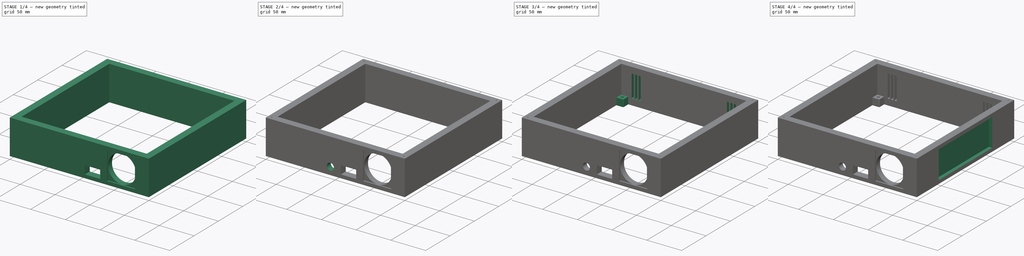
[diagram: build sequence overview — one tinted view per stage of 4, left to right]
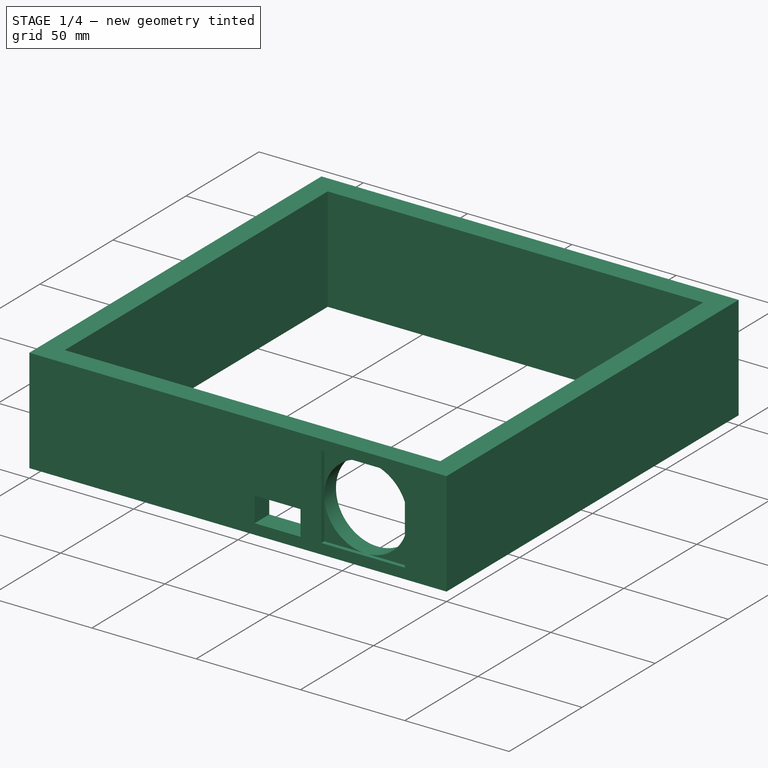
[diagram: stage 1 of 4 — iso view after this stage's code; geometry added in this stage tinted green]
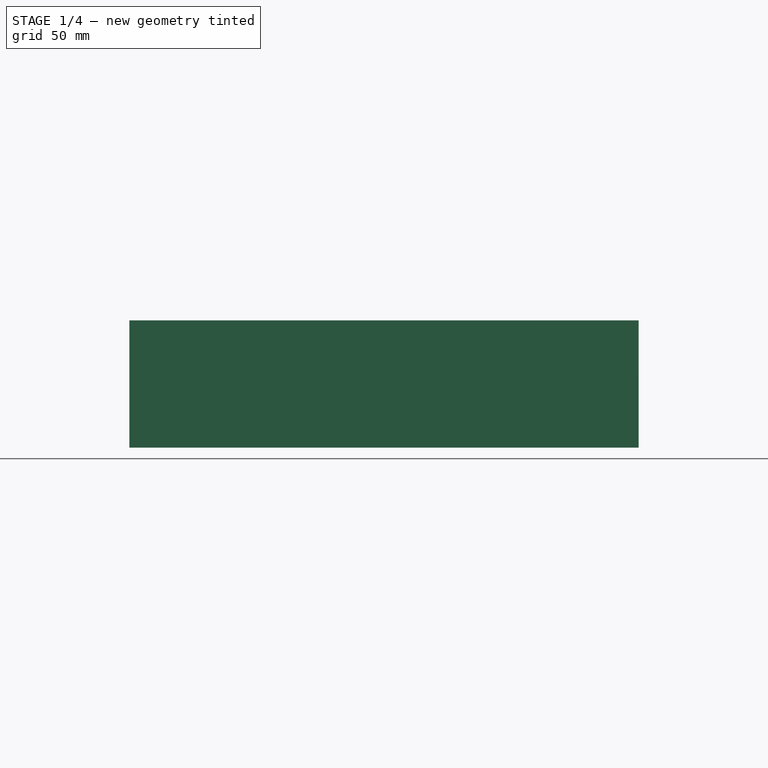
[diagram: stage 1 of 4 — front view after this stage's code; geometry added in this stage tinted green]
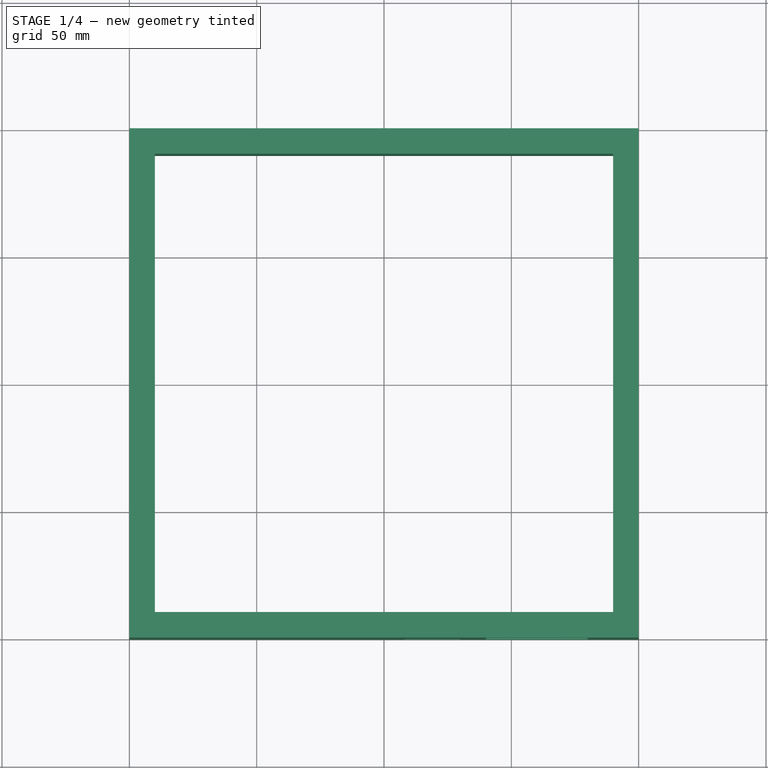
[diagram: stage 1 of 4 — top view after this stage's code; geometry added in this stage tinted green]
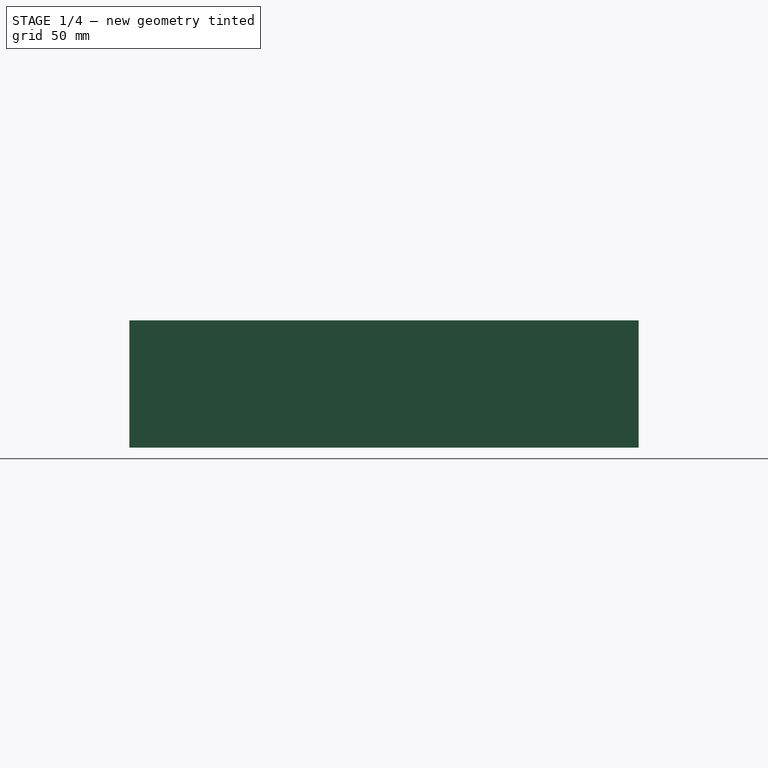
[diagram: stage 1 of 4 — right view after this stage's code; geometry added in this stage tinted green]
FCSTD DOCUMENT  (FreeCAD 1.0R39109 (Git))
Label: Gehause
License: All rights reserved
LicenseURL: https://en.wikipedia.org/wiki/All_rights_reserved
objects: Sketcher::SketchObject×13, PartDesign::Pocket×11, PartDesign::Pad×2, PartDesign::Fillet×1, PartDesign::Body×1
note: 69 computed .brp shape members not serialized (recipe doc carries the construction recipe); baked Part::Feature solids carry a one-line shape summary decoded from their .brp

FEATURE [Sketcher::SketchObject] Sketch
  ArcFitTolerance = 1e-06
  AttachmentSupport = -> [XY_Plane]
  FullyConstrained = true
  MakeInternals = false
  MapMode = 5
  sketch-geometry (8):
    g0: LineSegment StartX=0 StartY=0 StartZ=0 EndX=200 EndY=0 EndZ=0
    g1: LineSegment StartX=200 StartY=0 StartZ=0 EndX=200 EndY=200 EndZ=0
    g2: LineSegment StartX=200 StartY=200 StartZ=0 EndX=0 EndY=200 EndZ=0
    g3: LineSegment StartX=0 StartY=200 StartZ=0 EndX=0 EndY=0 EndZ=0
    g4: LineSegment StartX=10 StartY=10 StartZ=0 EndX=190 EndY=10 EndZ=0
    g5: LineSegment StartX=190 StartY=10 StartZ=0 EndX=190 EndY=190 EndZ=0
    g6: LineSegment StartX=190 StartY=190 StartZ=0 EndX=10 EndY=190 EndZ=0
    g7: LineSegment StartX=10 StartY=190 StartZ=0 EndX=10 EndY=10 EndZ=0
  constraints (23):
    c: Coincident(g0,g1)
    c: Coincident(g1,g2)
    c: Coincident(g2,g3)
    c: Coincident(g3,g0)
    c: Horizontal(g0)
    c: Horizontal(g2)
    c: Vertical(g1)
    c: Vertical(g3)
    c: Distance(g1,g3) = 200
    c: Distance(g0,g2) = 200
    c: Coincident(g0,g-1)
    c: Coincident(g4,g5)
    c: Coincident(g5,g6)
    c: Coincident(g6,g7)
    c: Coincident(g7,g4)
    c: Horizontal(g4)
    c: Horizontal(g6)
    c: Vertical(g5)
    c: Vertical(g7)
    c: Distance(g0,g4) = 10
    c: Distance(g1,g5) = 10
    c: Distance(g3,g7) = 10
    c: Distance(g2,g6) = 10
FEATURE [PartDesign::Pad] Pad
  Direction = (0,0,1)
  Length = 50
  Length2 = 10
  Profile = -> Sketch
  ReferenceAxis = -> Sketch [N_Axis]
  Refine = true
  Suppressed = false
  Type = 0
FEATURE [Sketcher::SketchObject] Sketch001
  ArcFitTolerance = 1e-06
  AttachmentSupport = -> [Pad]
  ExternalGeometry = -> [Pad]
  FullyConstrained = true
  MakeInternals = false
  MapMode = 5
  Placement = pos=(0,0,0) rot=(1,0,0;1.5708rad)
  sketch-geometry (7):
    g0: LineSegment StartX=140 StartY=5 StartZ=0 EndX=180 EndY=5 EndZ=0
    g1: LineSegment StartX=180 StartY=5 StartZ=0 EndX=180 EndY=45 EndZ=0
    g2: LineSegment StartX=180 StartY=45 StartZ=0 EndX=140 EndY=45 EndZ=0
    g3: LineSegment StartX=140 StartY=45 StartZ=0 EndX=140 EndY=5 EndZ=0
    g4: LineSegment [constr] StartX=200 StartY=50 StartZ=0 EndX=120 EndY=0 EndZ=0
    g5: GeomPoint [constr] X=160 Y=25 Z=0
    g6: LineSegment [constr] StartX=140 StartY=45 StartZ=0 EndX=180 EndY=5 EndZ=0
  constraints (17):
    c: Coincident(g0,g1)
    c: Coincident(g1,g2)
    c: Coincident(g2,g3)
    c: Coincident(g3,g0)
    c: Horizontal(g0)
    c: Horizontal(g2)
    c: Vertical(g1)
    c: Vertical(g3)
    c: Distance(g1,g3) = 40
    c: Distance(g0,g2) = 40
    c: Coincident(g4,g-3)
    c: PointOnObject(g4,g-1)
    c: Symmetric(g4,g4,g5)
    c: Coincident(g6,g0)
    c: Coincident(g6,g2)
    c: Symmetric(g6,g6,g5)
    c: Distance(g-3,g1) = 20
FEATURE [PartDesign::Pocket] Pocket  label="Lüftungsgitter-Loch"
  BaseFeature = -> Pad
  Direction = (0,1,-2e-16)
  Length = 2
  Length2 = 5
  Profile = -> Sketch001
  ReferenceAxis = -> Sketch001 [N_Axis]
  Refine = true
  Suppressed = false
  Type = 0
FEATURE [Sketcher::SketchObject] Sketch002
  ArcFitTolerance = 1e-06
  AttachmentSupport = -> [Pocket]
  ExternalGeometry = -> [Pocket]
  FullyConstrained = true
  MakeInternals = false
  MapMode = 5
  Placement = pos=(0,2,0) rot=(1,0,0;1.5708rad)
  sketch-geometry (2):
    g0: LineSegment [constr] StartX=140 StartY=5 StartZ=0 EndX=180 EndY=45 EndZ=0
    g1: Circle CenterX=160 CenterY=25 CenterZ=0 NormalX=0 NormalY=0 NormalZ=1 AngleXU=0 Radius=20
  constraints (4):
    c: Coincident(g0,g-4)
    c: Coincident(g0,g-3)
    c: Diameter(g1) = 40
    c: Symmetric(g0,g0,g1)
FEATURE [PartDesign::Pocket] Pocket001  label="Loch für Lüfter"
  BaseFeature = -> Pocket
  Direction = (0,1,-2e-16)
  Length = 8
  Length2 = 5
  Profile = -> Sketch002
  ReferenceAxis = -> Sketch002 [N_Axis]
  Refine = true
  Suppressed = false
  Type = 0
FEATURE [Sketcher::SketchObject] Sketch003
  ArcFitTolerance = 1e-06
  AttachmentSupport = -> [Pocket001]
  ExternalGeometry = -> [Pocket001]
  FullyConstrained = true
  MakeInternals = false
  MapMode = 5
  Placement = pos=(0,0,0) rot=(1,0,0;1.5708rad)
  sketch-geometry (4):
    g0: LineSegment StartX=108 StartY=5 StartZ=0 EndX=130 EndY=5 EndZ=0
    g1: LineSegment StartX=130 StartY=5 StartZ=0 EndX=130 EndY=17 EndZ=0
    g2: LineSegment StartX=130 StartY=17 StartZ=0 EndX=108 EndY=17 EndZ=0
    g3: LineSegment StartX=108 StartY=17 StartZ=0 EndX=108 EndY=5 EndZ=0
  constraints (12):
    c: Coincident(g0,g1)
    c: Coincident(g1,g2)
    c: Coincident(g2,g3)
    c: Coincident(g3,g0)
    c: Horizontal(g0)
    c: Horizontal(g2)
    c: Vertical(g1)
    c: Vertical(g3)
    c: Distance(g1,g3) = 22
    c: Distance(g0,g2) = 12
    c: PointOnObject(g0,g-3)
    c: Distance(g-4,g1) = 10
FEATURE [PartDesign::Pocket] Pocket002  label="Loch für HDMI"
  BaseFeature = -> Pocket001
  Direction = (0,1,-2e-16)
  Length = 10
  Length2 = 5
  Profile = -> Sketch003
  ReferenceAxis = -> Sketch003 [N_Axis]
  Refine = true
  Suppressed = false
  Type = 0
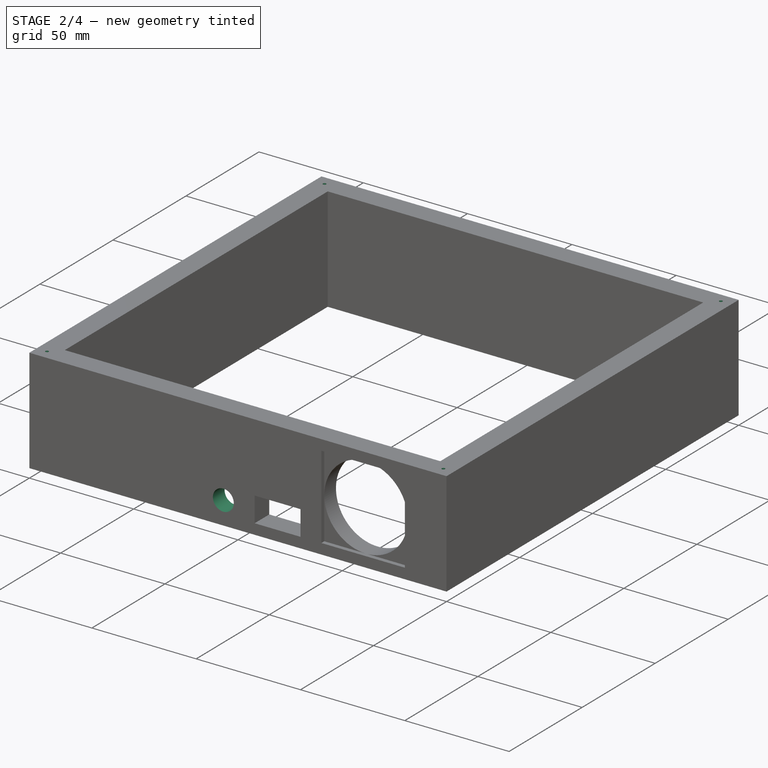
[diagram: stage 2 of 4 — iso view after this stage's code; geometry added in this stage tinted green]
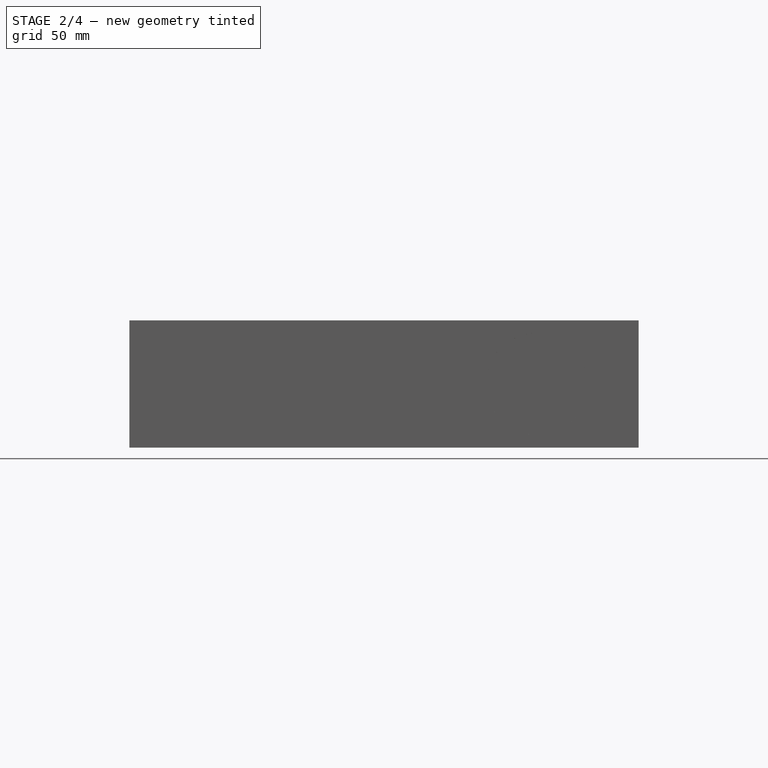
[diagram: stage 2 of 4 — front view after this stage's code; geometry added in this stage tinted green]
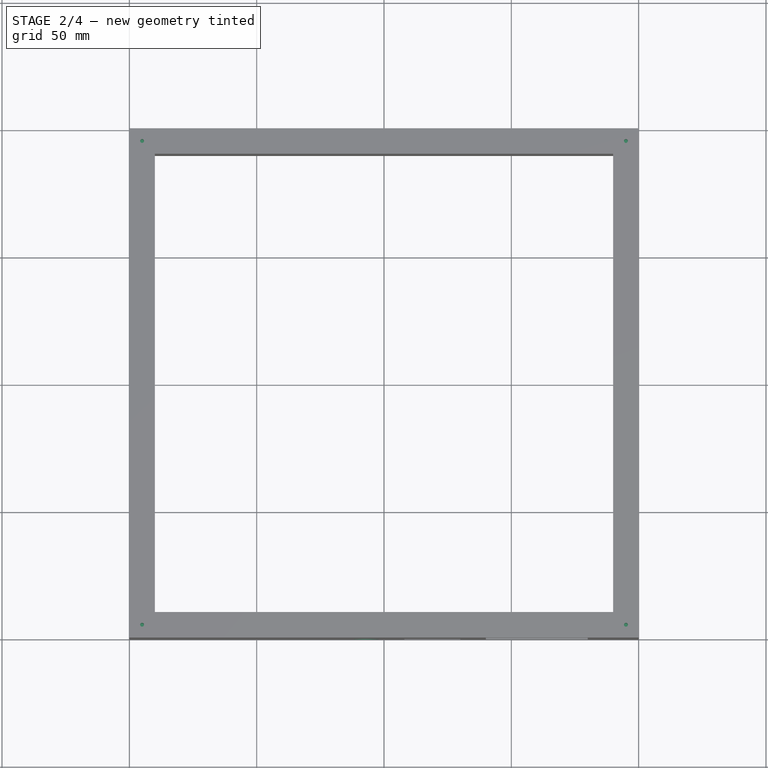
[diagram: stage 2 of 4 — top view after this stage's code; geometry added in this stage tinted green]
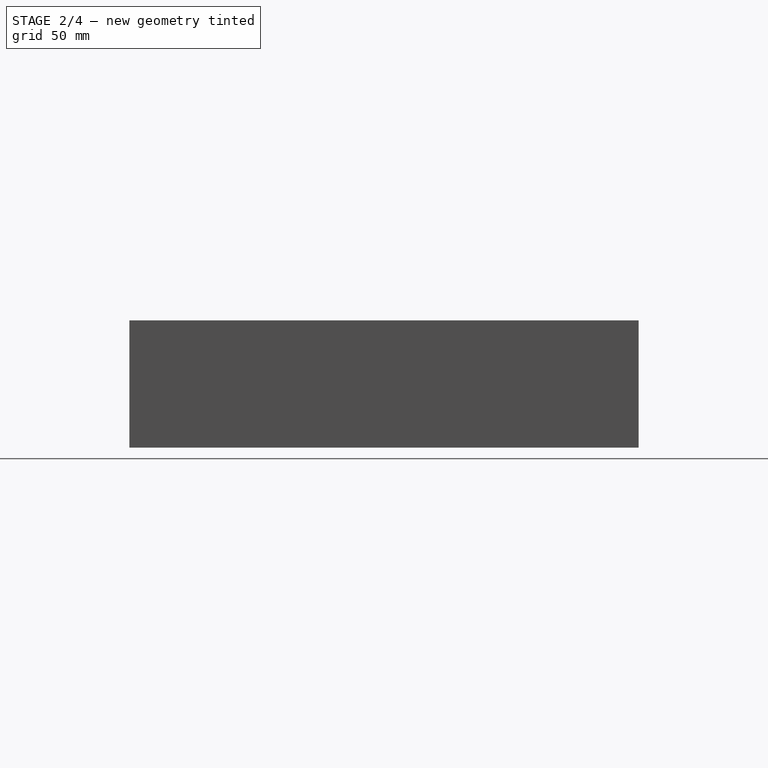
[diagram: stage 2 of 4 — right view after this stage's code; geometry added in this stage tinted green]
FEATURE [Sketcher::SketchObject] Sketch004
  ArcFitTolerance = 1e-06
  AttachmentSupport = -> [Pocket002]
  ExternalGeometry = -> [Pocket002]
  FullyConstrained = true
  MakeInternals = false
  MapMode = 5
  Placement = pos=(0,0,0) rot=(1,0,0;1.5708rad)
  sketch-geometry (3):
    g0: Circle CenterX=93 CenterY=11 CenterZ=0 NormalX=0 NormalY=0 NormalZ=1 AngleXU=0 Radius=5
    g1: LineSegment [constr] StartX=93 StartY=11 StartZ=0 EndX=108 EndY=17 EndZ=0
    g2: LineSegment [constr] StartX=93 StartY=11 StartZ=0 EndX=108 EndY=5 EndZ=0
  constraints (7):
    c: Diameter(g0) = 10
    c: Coincident(g1,g0)
    c: Coincident(g1,g-3)
    c: Coincident(g2,g1)
    c: Coincident(g2,g-3)
    c: Equal(g2,g1)
    c: DistanceX(g0,g2) = 15
FEATURE [PartDesign::Pocket] Pocket003  label="Loch für Strom"
  BaseFeature = -> Pocket002
  Direction = (0,1,-2e-16)
  Length = 10
  Length2 = 5
  Profile = -> Sketch004
  ReferenceAxis = -> Sketch004 [N_Axis]
  Refine = true
  Suppressed = false
  Type = 0
FEATURE [Sketcher::SketchObject] Sketch005
  ArcFitTolerance = 1e-06
  AttachmentSupport = -> [Pocket003]
  ExternalGeometry = -> [Pocket003]
  FullyConstrained = true
  MakeInternals = false
  MapMode = 5
  Placement = pos=(0,10,0) rot=(0,0.707107,0.707107;3.14159rad)
  sketch-geometry (5):
    g0: LineSegment StartX=-100.5 StartY=3.5 StartZ=0 EndX=-85.5 EndY=3.5 EndZ=0
    g1: LineSegment StartX=-85.5 StartY=3.5 StartZ=0 EndX=-85.5 EndY=18.5 EndZ=0
    g2: LineSegment StartX=-85.5 StartY=18.5 StartZ=0 EndX=-100.5 EndY=18.5 EndZ=0
    g3: LineSegment StartX=-100.5 StartY=18.5 StartZ=0 EndX=-100.5 EndY=3.5 EndZ=0
    g4: LineSegment [constr] StartX=-100.5 StartY=18.5 StartZ=0 EndX=-85.5 EndY=3.5 EndZ=0
  constraints (13):
    c: Coincident(g0,g1)
    c: Coincident(g1,g2)
    c: Coincident(g2,g3)
    c: Coincident(g3,g0)
    c: Horizontal(g0)
    c: Horizontal(g2)
    c: Vertical(g1)
    c: Vertical(g3)
    c: Distance(g1,g3) = 15
    c: Distance(g0,g2) = 15
    c: Coincident(g4,g2)
    c: Symmetric(g4,g4,g-3)
    c: Coincident(g4,g0)
FEATURE [PartDesign::Pocket] Pocket004  label="Aussparung für Strom"
  BaseFeature = -> Pocket003
  Direction = (0,-1,2e-16)
  Length = 2
  Length2 = 5
  Profile = -> Sketch005
  ReferenceAxis = -> Sketch005 [N_Axis]
  Refine = true
  Suppressed = false
  Type = 0
FEATURE [Sketcher::SketchObject] Sketch006
  ArcFitTolerance = 1e-06
  AttachmentSupport = -> [Pocket004]
  ExternalGeometry = -> [Pocket004]
  FullyConstrained = true
  MakeInternals = false
  MapMode = 5
  Placement = pos=(0,0,50) rot=(0,0,1;0rad)
  sketch-geometry (8):
    g0: Circle CenterX=5 CenterY=5 CenterZ=0 NormalX=0 NormalY=0 NormalZ=1 AngleXU=0 Radius=0.75
    g1: LineSegment [constr] StartX=0 StartY=0 StartZ=0 EndX=10 EndY=10 EndZ=0
    g2: LineSegment [constr] StartX=190 StartY=10 StartZ=0 EndX=200 EndY=0 EndZ=0
    g3: Circle CenterX=195 CenterY=5 CenterZ=0 NormalX=0 NormalY=0 NormalZ=1 AngleXU=0 Radius=0.75
    g4: LineSegment [constr] StartX=190 StartY=190 StartZ=0 EndX=200 EndY=200 EndZ=0
    g5: Circle CenterX=195 CenterY=195 CenterZ=0 NormalX=0 NormalY=0 NormalZ=1 AngleXU=0 Radius=0.75
    g6: LineSegment [constr] StartX=0 StartY=200 StartZ=0 EndX=10 EndY=190 EndZ=0
    g7: Circle CenterX=5 CenterY=195 CenterZ=0 NormalX=0 NormalY=0 NormalZ=1 AngleXU=0 Radius=0.75
  constraints (16):
    c: Diameter(g0) = 1.5
    c: Coincident(g1,g-1)
    c: Coincident(g1,g-3)
    c: Symmetric(g1,g1,g0)
    c: Coincident(g2,g-4)
    c: Coincident(g2,g-5)
    c: Equal(g3,g0)
    c: Symmetric(g2,g2,g3)
    c: Coincident(g4,g-7)
    c: Coincident(g4,g-6)
    c: Diameter(g5) = 1.5
    c: Symmetric(g4,g4,g5)
    c: Coincident(g6,g-9)
    c: Coincident(g6,g-8)
    c: Diameter(g7) = 1.5
    c: Symmetric(g6,g6,g7)
FEATURE [PartDesign::Pocket] Pocket005  label="Schraublöcher für Plexikgalsbesfestigung"
  BaseFeature = -> Pocket004
  Direction = (0,0,-1)
  Length = 10
  Length2 = 5
  Profile = -> Sketch006
  ReferenceAxis = -> Sketch006 [N_Axis]
  Refine = true
  Suppressed = false
  Type = 0
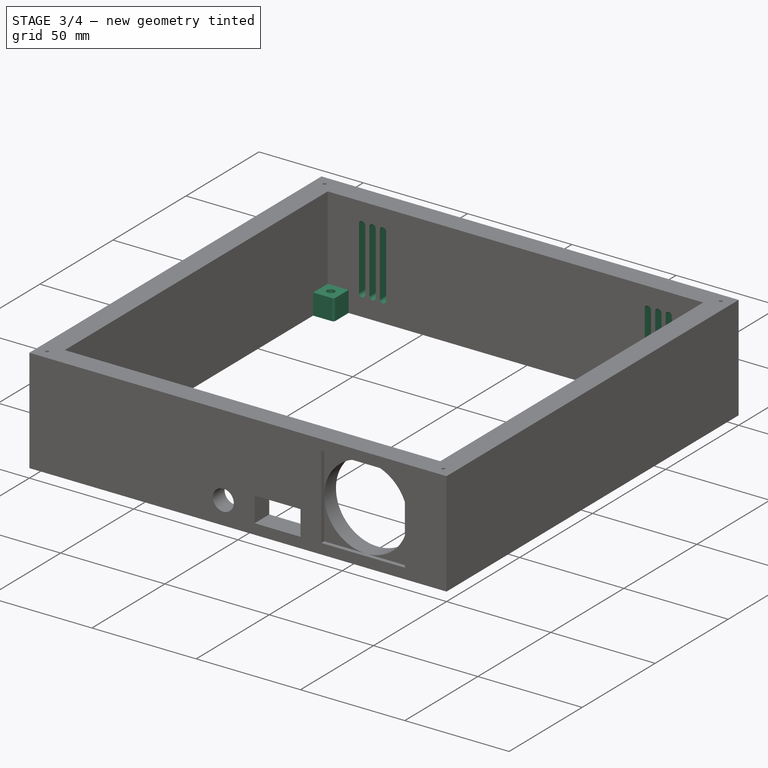
[diagram: stage 3 of 4 — iso view after this stage's code; geometry added in this stage tinted green]
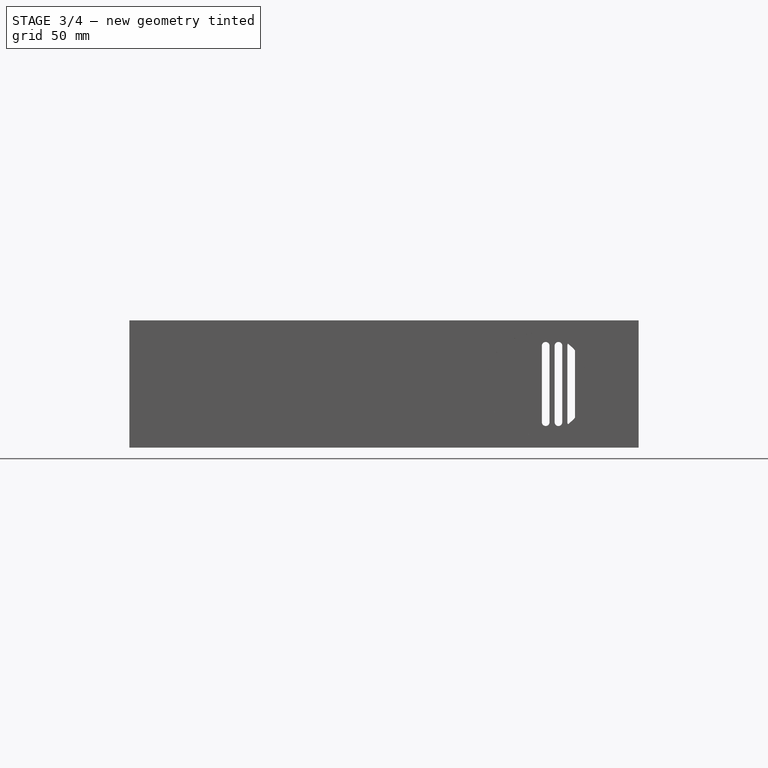
[diagram: stage 3 of 4 — front view after this stage's code; geometry added in this stage tinted green]
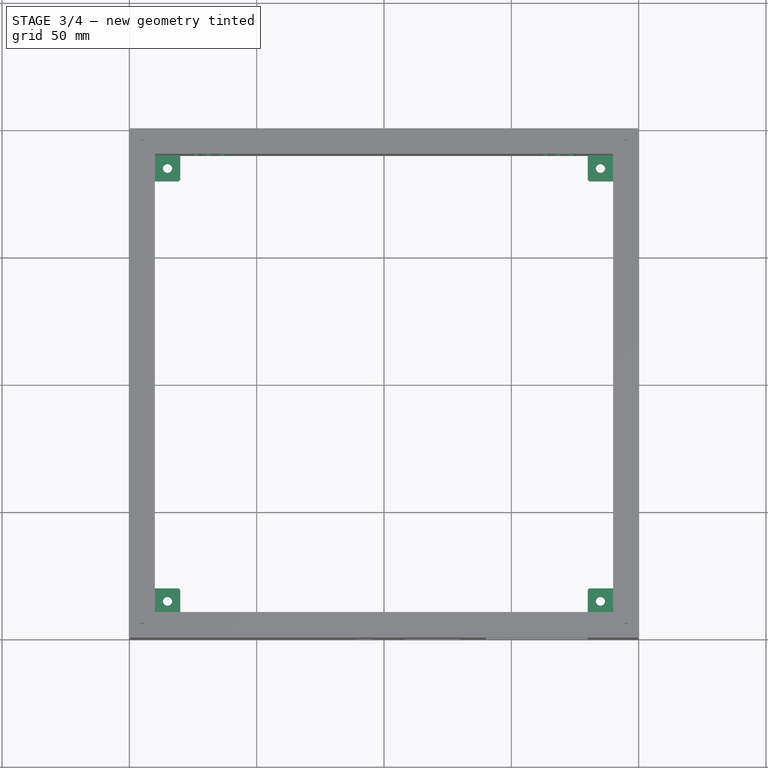
[diagram: stage 3 of 4 — top view after this stage's code; geometry added in this stage tinted green]
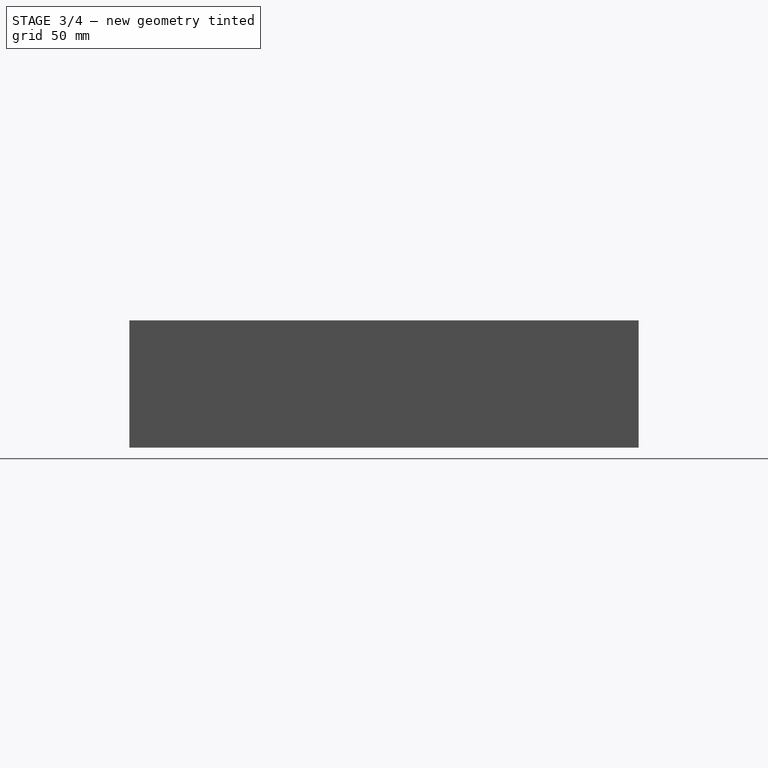
[diagram: stage 3 of 4 — right view after this stage's code; geometry added in this stage tinted green]
FEATURE [Sketcher::SketchObject] Sketch007
  ArcFitTolerance = 1e-06
  AttachmentSupport = -> [Pocket005]
  ExternalGeometry = -> [Pocket005]
  FullyConstrained = true
  MakeInternals = false
  MapMode = 5
  Placement = pos=(0,200,0) rot=(0,0.707107,0.707107;3.14159rad)
  sketch-geometry (32):
    g0: ArcOfCircle CenterX=-36.5 CenterY=10 CenterZ=0 NormalX=0 NormalY=0 NormalZ=1 AngleXU=0 Radius=1.5 StartAngle=3.14159 EndAngle=6.28319
    g1: ArcOfCircle CenterX=-36.5 CenterY=40 CenterZ=0 NormalX=0 NormalY=0 NormalZ=1 AngleXU=0 Radius=1.5 StartAngle=-1.8e-15 EndAngle=3.14159
    g2: LineSegment StartX=-38 StartY=10 StartZ=0 EndX=-38 EndY=40 EndZ=0
    g3: LineSegment StartX=-35 StartY=10 StartZ=0 EndX=-35 EndY=40 EndZ=0
    g4: ArcOfCircle CenterX=-31.5 CenterY=10 CenterZ=0 NormalX=0 NormalY=0 NormalZ=1 AngleXU=0 Radius=1.5 StartAngle=3.14159 EndAngle=6.28319
    g5: ArcOfCircle CenterX=-31.5 CenterY=40 CenterZ=0 NormalX=0 NormalY=0 NormalZ=1 AngleXU=0 Radius=1.5 StartAngle=2.2e-15 EndAngle=3.14159
    g6: LineSegment StartX=-33 StartY=10 StartZ=0 EndX=-33 EndY=40 EndZ=0
    g7: LineSegment StartX=-30 StartY=10 StartZ=0 EndX=-30 EndY=40 EndZ=0
    g8: ArcOfCircle CenterX=-26.5 CenterY=10 CenterZ=0 NormalX=0 NormalY=0 NormalZ=1 AngleXU=0 Radius=1.5 StartAngle=3.14159 EndAngle=6.28319
    g9: ArcOfCircle CenterX=-26.5 CenterY=40 CenterZ=0 NormalX=0 NormalY=0 NormalZ=1 AngleXU=0 Radius=1.5 StartAngle=-2.7e-15 EndAngle=3.14159
    g10: LineSegment StartX=-28 StartY=10 StartZ=0 EndX=-28 EndY=40 EndZ=0
    g11: LineSegment StartX=-25 StartY=10 StartZ=0 EndX=-25 EndY=40 EndZ=0
    g12: LineSegment [constr] StartX=-35 StartY=10 StartZ=0 EndX=-33 EndY=10 EndZ=0
    g13: LineSegment [constr] StartX=-30 StartY=10 StartZ=0 EndX=-28 EndY=10 EndZ=0
    g14: LineSegment [constr] StartX=0 StartY=50 StartZ=0 EndX=-26.5 EndY=40 EndZ=0
    g15: LineSegment [constr] StartX=0 StartY=0 StartZ=0 EndX=-26.5 EndY=10 EndZ=0
    g16: ArcOfCircle CenterX=-163.5 CenterY=10 CenterZ=0 NormalX=0 NormalY=0 NormalZ=1 AngleXU=0 Radius=1.5 StartAngle=3.14159 EndAngle=6.28319
    g17: ArcOfCircle CenterX=-163.5 CenterY=40 CenterZ=0 NormalX=0 NormalY=0 NormalZ=1 AngleXU=0 Radius=1.5 StartAngle=0 EndAngle=3.14159
    g18: LineSegment StartX=-165 StartY=10 StartZ=0 EndX=-165 EndY=40 EndZ=0
    g19: LineSegment StartX=-162 StartY=10 StartZ=0 EndX=-162 EndY=40 EndZ=0
    g20: ArcOfCircle CenterX=-168.5 CenterY=10 CenterZ=0 NormalX=0 NormalY=0 NormalZ=1 AngleXU=0 Radius=1.5 StartAngle=3.14159 EndAngle=6.28319
    g21: ArcOfCircle CenterX=-168.5 CenterY=40 CenterZ=0 NormalX=0 NormalY=0 NormalZ=1 AngleXU=0 Radius=1.5 StartAngle=1e-15 EndAngle=3.14159
    g22: LineSegment StartX=-170 StartY=10 StartZ=0 EndX=-170 EndY=40 EndZ=0
    g23: LineSegment StartX=-167 StartY=10 StartZ=0 EndX=-167 EndY=40 EndZ=0
    g24: ArcOfCircle CenterX=-173.5 CenterY=10 CenterZ=0 NormalX=0 NormalY=0 NormalZ=1 AngleXU=0 Radius=1.5 StartAngle=3.14159 EndAngle=6.28319
    g25: ArcOfCircle CenterX=-173.5 CenterY=40 CenterZ=0 NormalX=0 NormalY=0 NormalZ=1 AngleXU=0 Radius=1.5 StartAngle=-1.8e-15 EndAngle=3.14159
    g26: LineSegment StartX=-175 StartY=10 StartZ=0 EndX=-175 EndY=40 EndZ=0
    g27: LineSegment StartX=-172 StartY=10 StartZ=0 EndX=-172 EndY=40 EndZ=0
    g28: LineSegment [constr] StartX=-172 StartY=10 StartZ=0 EndX=-170 EndY=10 EndZ=0
    g29: LineSegment [constr] StartX=-167 StartY=10 StartZ=0 EndX=-165 EndY=10 EndZ=0
    g30: LineSegment [constr] StartX=-200 StartY=0 StartZ=0 EndX=-173.5 EndY=10 EndZ=0
    g31: LineSegment [constr] StartX=-200 StartY=50 StartZ=0 EndX=-173.5 EndY=40 EndZ=0
  constraints (76):
    c: Tangent(g0,g2) = 1.5708
    c: Tangent(g0,g3) = -1.5708
    c: Tangent(g1,g2) = 1.5708
    c: Tangent(g1,g3) = -1.5708
    c: Equal(g0,g1)
    c: Vertical(g3)
    c: Distance(g0,g1) = 30
    c: Radius(g0) = 1.5
    c: Tangent(g4,g6) = 1.5708
    c: Tangent(g4,g7) = -1.5708
    c: Tangent(g5,g6) = 1.5708
    c: Tangent(g5,g7) = -1.5708
    c: Equal(g4,g5)
    c: Vertical(g7)
    c: Distance(g4,g5) = 30
    c: Radius(g4) = 1.5
    c: Tangent(g8,g10) = 1.5708
    c: Tangent(g8,g11) = -1.5708
    c: Tangent(g9,g10) = 1.5708
    c: Tangent(g9,g11) = -1.5708
    c: Equal(g8,g9)
    c: Vertical(g11)
    c: Distance(g8,g9) = 30
    c: Radius(g8) = 1.5
    c: Coincident(g12,g0)
    c: Coincident(g12,g4)
    c: Coincident(g13,g4)
    c: Coincident(g13,g8)
    c: Horizontal(g12)
    c: Horizontal(g13)
    c: Equal(g13,g12)
    c: Distance(g3,g6) = 2
    c: Coincident(g14,g-3)
    c: Coincident(g14,g9)
    c: Coincident(g15,g-1)
    c: Coincident(g15,g8)
    c: Equal(g15,g14)
    c: Distance(g-3,g11) = 25
    c: Tangent(g16,g18) = 1.5708
    c: Tangent(g16,g19) = -1.5708
    c: Tangent(g17,g18) = 1.5708
    c: Tangent(g17,g19) = -1.5708
    c: Equal(g16,g17)
    c: Vertical(g19)
    c: Distance(g16,g17) = 30
    c: Radius(g16) = 1.5
    c: Tangent(g20,g22) = 1.5708
    c: Tangent(g20,g23) = -1.5708
    c: Tangent(g21,g22) = 1.5708
    c: Tangent(g21,g23) = -1.5708
    c: Equal(g20,g21)
    c: Vertical(g23)
    c: Distance(g20,g21) = 30
    c: Radius(g20) = 1.5
    c: Tangent(g24,g26) = 1.5708
    c: Tangent(g24,g27) = -1.5708
    c: Tangent(g25,g26) = 1.5708
    c: Tangent(g25,g27) = -1.5708
    c: Equal(g24,g25)
    c: Vertical(g27)
    c: Distance(g24,g25) = 30
    c: Radius(g24) = 1.5
    c: Coincident(g28,g24)
    c: Coincident(g28,g20)
    c: Coincident(g29,g20)
    c: Coincident(g29,g16)
    c: Horizontal(g29)
    c: Horizontal(g28)
    c: Equal(g28,g29)
    c: Distance(g22,g27) = 2
    c: Coincident(g30,g-4)
    c: Coincident(g30,g24)
    c: Coincident(g31,g-4)
    c: Coincident(g31,g25)
    c: Equal(g31,g30)
    c: Distance(g-4,g26) = 25
FEATURE [PartDesign::Pocket] Pocket006  label="Lüftungsschlitze"
  BaseFeature = -> Pocket005
  Direction = (0,-1,2e-16)
  Length = 10
  Length2 = 5
  Profile = -> Sketch007
  ReferenceAxis = -> Sketch007 [N_Axis]
  Refine = true
  Suppressed = false
  Type = 0
FEATURE [Sketcher::SketchObject] Sketch008
  ArcFitTolerance = 1e-06
  AttachmentSupport = -> [Pocket006]
  ExternalGeometry = -> [Pocket006]
  FullyConstrained = true
  MakeInternals = false
  MapMode = 5
  Placement = pos=(0,0,0) rot=(1,0,0;3.14159rad)
  sketch-geometry (24):
    g0: LineSegment StartX=190 StartY=-10 StartZ=0 EndX=180 EndY=-10 EndZ=0
    g1: LineSegment StartX=180 StartY=-10 StartZ=0 EndX=180 EndY=-20 EndZ=0
    g2: LineSegment StartX=180 StartY=-20 StartZ=0 EndX=190 EndY=-20 EndZ=0
    g3: LineSegment StartX=190 StartY=-20 StartZ=0 EndX=190 EndY=-10 EndZ=0
    g4: LineSegment [constr] StartX=180 StartY=-20 StartZ=0 EndX=190 EndY=-10 EndZ=0
    g5: Circle CenterX=185 CenterY=-15 CenterZ=0 NormalX=0 NormalY=0 NormalZ=1 AngleXU=0 Radius=1.8
    g6: LineSegment StartX=190 StartY=-190 StartZ=0 EndX=190 EndY=-180 EndZ=0
    g7: LineSegment StartX=190 StartY=-180 StartZ=0 EndX=180 EndY=-180 EndZ=0
    g8: LineSegment StartX=180 StartY=-180 StartZ=0 EndX=180 EndY=-190 EndZ=0
    g9: LineSegment StartX=180 StartY=-190 StartZ=0 EndX=190 EndY=-190 EndZ=0
    g10: LineSegment [constr] StartX=180 StartY=-180 StartZ=0 EndX=190 EndY=-190 EndZ=0
    g11: Circle CenterX=185 CenterY=-185 CenterZ=0 NormalX=0 NormalY=0 NormalZ=1 AngleXU=0 Radius=1.8
    g12: LineSegment StartX=10 StartY=-10 StartZ=0 EndX=10 EndY=-20 EndZ=0
    g13: LineSegment StartX=10 StartY=-20 StartZ=0 EndX=20 EndY=-20 EndZ=0
    g14: LineSegment StartX=20 StartY=-20 StartZ=0 EndX=20 EndY=-10 EndZ=0
    g15: LineSegment StartX=20 StartY=-10 StartZ=0 EndX=10 EndY=-10 EndZ=0
    g16: LineSegment [constr] StartX=10 StartY=-10 StartZ=0 EndX=20 EndY=-20 EndZ=0
    g17: Circle CenterX=15 CenterY=-15 CenterZ=0 NormalX=0 NormalY=0 NormalZ=1 AngleXU=0 Radius=1.8
    g18: LineSegment StartX=10 StartY=-190 StartZ=0 EndX=20 EndY=-190 EndZ=0
    g19: LineSegment StartX=20 StartY=-190 StartZ=0 EndX=20 EndY=-180 EndZ=0
    g20: LineSegment StartX=20 StartY=-180 StartZ=0 EndX=10 EndY=-180 EndZ=0
    g21: LineSegment StartX=10 StartY=-180 StartZ=0 EndX=10 EndY=-190 EndZ=0
    g22: LineSegment [constr] StartX=10 StartY=-190 StartZ=0 EndX=20 EndY=-180 EndZ=0
    g23: Circle CenterX=15 CenterY=-185 CenterZ=0 NormalX=0 NormalY=0 NormalZ=1 AngleXU=0 Radius=1.8
  constraints (60):
    c: Coincident(g0,g1)
    c: Coincident(g1,g2)
    c: Coincident(g2,g3)
    c: Coincident(g3,g0)
    c: Horizontal(g0)
    c: Horizontal(g2)
    c: Vertical(g1)
    c: Vertical(g3)
    c: Distance(g1,g3) = 10
    c: Distance(g0,g2) = 10
    c: Coincident(g4,g1)
    c: Coincident(g4,g0)
    c: Diameter(g5) = 3.6
    c: Symmetric(g4,g4,g5)
    c: Coincident(g6,g7)
    c: Coincident(g7,g8)
    c: Coincident(g8,g9)
    c: Coincident(g9,g6)
    c: Vertical(g6)
    c: Vertical(g8)
    c: Horizontal(g7)
    c: Horizontal(g9)
    c: Distance(g6,g8) = 10
    c: Distance(g7,g9) = 10
    c: Coincident(g6,g-3)
    c: Coincident(g10,g7)
    c: Coincident(g10,g6)
    c: Diameter(g11) = 3.6
    c: Symmetric(g10,g10,g11)
    c: Coincident(g0,g-4)
    c: Coincident(g12,g13)
    c: Coincident(g13,g14)
    c: Coincident(g14,g15)
    c: Coincident(g15,g12)
    c: Vertical(g12)
    c: Vertical(g14)
    c: Horizontal(g13)
    c: Horizontal(g15)
    c: Distance(g12,g14) = 10
    c: Distance(g13,g15) = 10
    c: Coincident(g12,g-6)
    c: Coincident(g16,g12)
    c: Coincident(g16,g13)
    c: Diameter(g17) = 3.6
    c: Symmetric(g16,g16,g17)
    c: Coincident(g18,g19)
    c: Coincident(g19,g20)
    c: Coincident(g20,g21)
    c: Coincident(g21,g18)
    c: Horizontal(g18)
    c: Horizontal(g20)
    c: Vertical(g19)
    c: Vertical(g21)
    c: Distance(g19,g21) = 10
    c: Distance(g18,g20) = 10
    c: Coincident(g18,g-5)
    c: Coincident(g22,g18)
    c: Coincident(g22,g19)
    c: Diameter(g23) = 3.6
    c: Symmetric(g22,g22,g23)
FEATURE [PartDesign::Pad] Pad001  label="Montagehilfe für Holzplatte"
  BaseFeature = -> Pocket006
  Direction = (0,0,-1)
  Length = 10
  Length2 = 10
  Profile = -> Sketch008
  ReferenceAxis = -> Sketch008 [N_Axis]
  Refine = true
  Reversed = true
  Suppressed = false
  Type = 0
FEATURE [PartDesign::Fillet] Fillet  label="Abrundungen der Montagehlfe"
  Base = -> Pad001 [Edge177,Edge169,Edge190,Edge198]
  BaseFeature = -> Pad001
  Radius = 1
  Refine = true
  SupportTransform = false
  Suppressed = false
  UseAllEdges = false
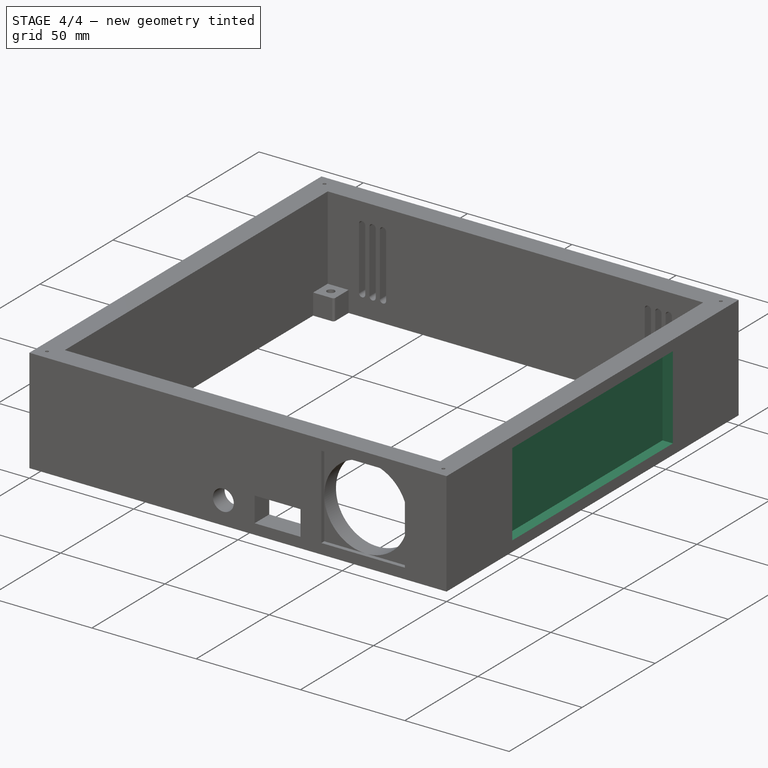
[diagram: stage 4 of 4 — iso view after this stage's code; geometry added in this stage tinted green]
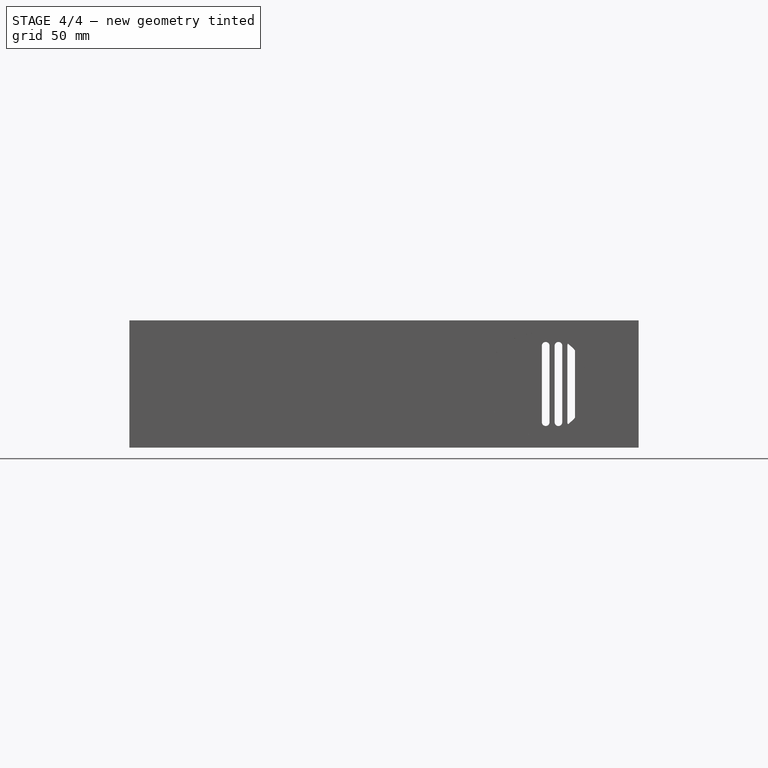
[diagram: stage 4 of 4 — front view after this stage's code; geometry added in this stage tinted green]
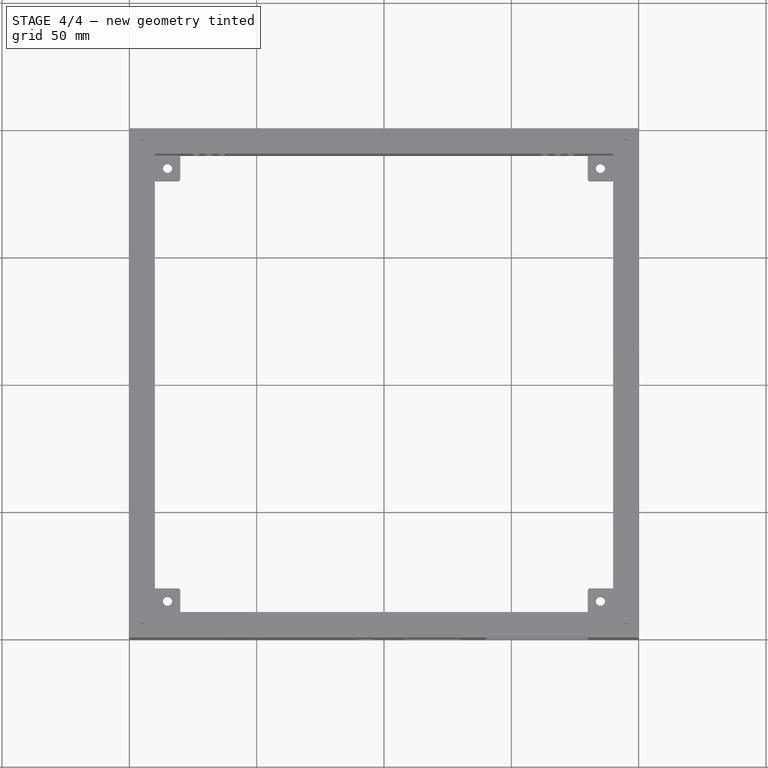
[diagram: stage 4 of 4 — top view after this stage's code; geometry added in this stage tinted green]
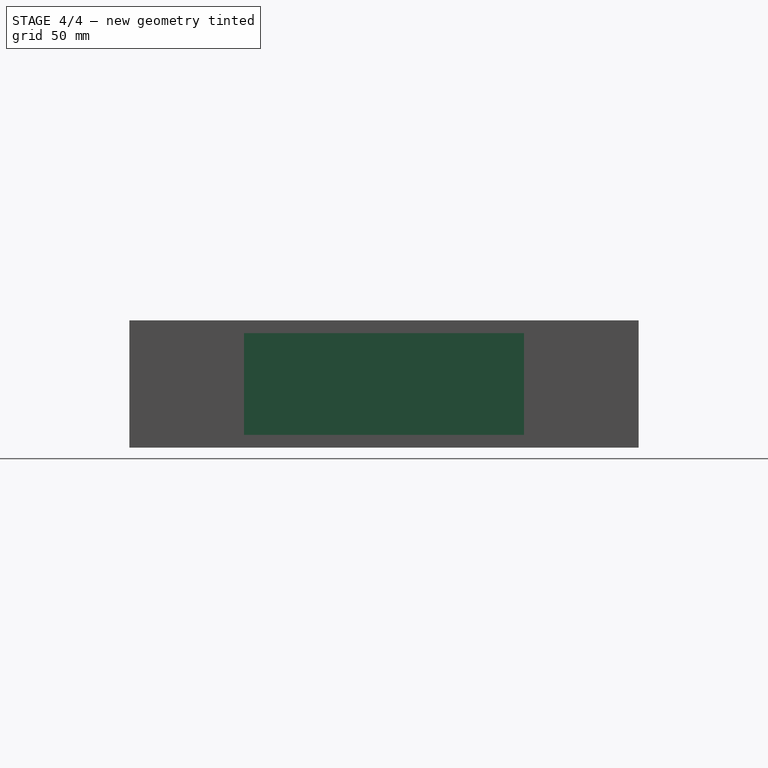
[diagram: stage 4 of 4 — right view after this stage's code; geometry added in this stage tinted green]
FEATURE [Sketcher::SketchObject] Sketch009
  ArcFitTolerance = 1e-06
  AttachmentSupport = -> [Fillet]
  ExternalGeometry = -> [Fillet]
  FullyConstrained = true
  MakeInternals = false
  MapMode = 5
  Placement = pos=(0,10,0) rot=(0,0.707107,0.707107;3.14159rad)
  sketch-geometry (10):
    g0: Circle CenterX=-144 CenterY=9 CenterZ=0 NormalX=0 NormalY=0 NormalZ=1 AngleXU=0 Radius=1.2
    g1: Circle CenterX=-176 CenterY=41 CenterZ=0 NormalX=0 NormalY=0 NormalZ=1 AngleXU=0 Radius=1.2
    g2: Circle CenterX=-176 CenterY=9 CenterZ=0 NormalX=0 NormalY=0 NormalZ=1 AngleXU=0 Radius=1.2
    g3: Circle CenterX=-144 CenterY=41 CenterZ=0 NormalX=0 NormalY=0 NormalZ=1 AngleXU=0 Radius=1.2
    g4: LineSegment [constr] StartX=-176 StartY=9 StartZ=0 EndX=-144 EndY=9 EndZ=0
    g5: LineSegment [constr] StartX=-144 StartY=9 StartZ=0 EndX=-144 EndY=41 EndZ=0
    g6: LineSegment [constr] StartX=-144 StartY=41 StartZ=0 EndX=-176 EndY=41 EndZ=0
    g7: LineSegment [constr] StartX=-176 StartY=41 StartZ=0 EndX=-176 EndY=9 EndZ=0
    g8: LineSegment [constr] StartX=-160 StartY=25 StartZ=0 EndX=-160 EndY=41 EndZ=0
    g9: LineSegment [constr] StartX=-160 StartY=25 StartZ=0 EndX=-176 EndY=25 EndZ=0
  constraints (25):
    c: Diameter(g0) = 2.4
    c: Diameter(g1) = 2.4
    c: Diameter(g2) = 2.4
    c: Diameter(g3) = 2.4
    c: Coincident(g4,g5)
    c: Coincident(g5,g6)
    c: Coincident(g6,g7)
    c: Coincident(g7,g4)
    c: Horizontal(g4)
    c: Horizontal(g6)
    c: Vertical(g5)
    c: Vertical(g7)
    c: Coincident(g0,g4)
    c: Coincident(g3,g5)
    c: Coincident(g6,g1)
    c: Coincident(g4,g2)
    c: DistanceX(g4,g4) = 32
    c: DistanceY(g5,g5) = 32
    c: Coincident(g8,g-3)
    c: Vertical(g8)
    c: Coincident(g9,g8)
    c: Symmetric(g7,g7,g9)
    c: Horizontal(g9)
    c: PointOnObject(g8,g6)
    c: Equal(g8,g9)
FEATURE [PartDesign::Pocket] Pocket007  label="Schraublöcher für Lüfter"
  BaseFeature = -> Fillet
  Direction = (0,-1,2e-16)
  Length = 5
  Length2 = 5
  Profile = -> Sketch009
  ReferenceAxis = -> Sketch009 [N_Axis]
  Refine = true
  Suppressed = false
  Type = 0
FEATURE [Sketcher::SketchObject] Sketch010
  ArcFitTolerance = 1e-06
  AttachmentSupport = -> [Pocket007]
  ExternalGeometry = -> [Pocket007]
  FullyConstrained = true
  MakeInternals = false
  MapMode = 5
  Placement = pos=(200,0,0) rot=(0.57735,0.57735,0.57735;2.0944rad)
  sketch-geometry (8):
    g0: LineSegment StartX=45 StartY=5 StartZ=0 EndX=155 EndY=5 EndZ=0
    g1: LineSegment StartX=155 StartY=5 StartZ=0 EndX=155 EndY=45 EndZ=0
    g2: LineSegment StartX=155 StartY=45 StartZ=0 EndX=45 EndY=45 EndZ=0
    g3: LineSegment StartX=45 StartY=45 StartZ=0 EndX=45 EndY=5 EndZ=0
    g4: LineSegment [constr] StartX=0 StartY=50 StartZ=0 EndX=45 EndY=45 EndZ=0
    g5: LineSegment [constr] StartX=0 StartY=0 StartZ=0 EndX=45 EndY=5 EndZ=0
    g6: LineSegment [constr] StartX=200 StartY=0 StartZ=0 EndX=155 EndY=5 EndZ=0
    g7: LineSegment [constr] StartX=155 StartY=45 StartZ=0 EndX=200 EndY=50 EndZ=0
  constraints (20):
    c: Coincident(g0,g1)
    c: Coincident(g1,g2)
    c: Coincident(g2,g3)
    c: Coincident(g3,g0)
    c: Horizontal(g0)
    c: Horizontal(g2)
    c: Vertical(g1)
    c: Vertical(g3)
    c: Coincident(g4,g-4)
    c: Coincident(g4,g2)
    c: Coincident(g5,g-1)
    c: Coincident(g5,g0)
    c: Coincident(g6,g-3)
    c: Coincident(g6,g0)
    c: Coincident(g7,g1)
    c: Coincident(g7,g-3)
    c: Equal(g6,g7)
    c: Equal(g7,g4)
    c: DistanceX(g0,g0) = 110
    c: DistanceY(g1,g1) = 40
FEATURE [PartDesign::Pocket] Pocket008  label="Seitenpanele für Unterschriften"
  BaseFeature = -> Pocket007
  Direction = (-1,0,0)
  Length = 5
  Length2 = 5
  Profile = -> Sketch010
  ReferenceAxis = -> Sketch010 [N_Axis]
  Refine = true
  Suppressed = false
  Type = 0
FEATURE [Sketcher::SketchObject] Sketch011
  ArcFitTolerance = 1e-06
  AttachmentSupport = -> [Pocket008]
  ExternalGeometry = -> [Pocket008]
  FullyConstrained = true
  MakeInternals = false
  MapMode = 5
  Placement = pos=(0,0,0) rot=(0.57735,-0.57735,-0.57735;2.0944rad)
  sketch-geometry (4):
    g0: LineSegment StartX=-155 StartY=45 StartZ=0 EndX=-155 EndY=5 EndZ=0
    g1: LineSegment StartX=-155 StartY=5 StartZ=0 EndX=-45 EndY=5 EndZ=0
    g2: LineSegment StartX=-45 StartY=5 StartZ=0 EndX=-45 EndY=45 EndZ=0
    g3: LineSegment StartX=-45 StartY=45 StartZ=0 EndX=-155 EndY=45 EndZ=0
  constraints (10):
    c: Coincident(g0,g1)
    c: Coincident(g1,g2)
    c: Coincident(g2,g3)
    c: Coincident(g3,g0)
    c: Vertical(g0)
    c: Vertical(g2)
    c: Horizontal(g1)
    c: Horizontal(g3)
    c: Coincident(g0,g-4)
    c: Coincident(g1,g-3)
FEATURE [PartDesign::Pocket] Pocket009  label="Seitenpanele für unterschriften (autoabgleich)"
  BaseFeature = -> Pocket008
  Direction = (1,0,0)
  Length = 5
  Length2 = 5
  Profile = -> Sketch011
  ReferenceAxis = -> Sketch011 [N_Axis]
  Refine = true
  Suppressed = false
  Type = 0
FEATURE [Sketcher::SketchObject] Sketch012
  ArcFitTolerance = 1e-06
  AttachmentSupport = -> [Pocket009]
  ExternalGeometry = -> [Pocket009]
  FullyConstrained = true
  MakeInternals = false
  MapMode = 5
  Placement = pos=(0,200,0) rot=(0,0.707107,0.707107;3.14159rad)
  sketch-geometry (7):
    g0: LineSegment StartX=-155 StartY=5 StartZ=0 EndX=-45 EndY=5 EndZ=0
    g1: LineSegment StartX=-45 StartY=5 StartZ=0 EndX=-45 EndY=45 EndZ=0
    g2: LineSegment StartX=-45 StartY=45 StartZ=0 EndX=-155 EndY=45 EndZ=0
    g3: LineSegment StartX=-155 StartY=45 StartZ=0 EndX=-155 EndY=5 EndZ=0
    g4: LineSegment [constr] StartX=-155 StartY=45 StartZ=0 EndX=-45 EndY=5 EndZ=0
    g5: LineSegment [constr] StartX=-162 StartY=10 StartZ=0 EndX=-38 EndY=40 EndZ=0
    g6: GeomPoint [constr] X=-100 Y=25 Z=0
  constraints (16):
    c: Coincident(g0,g1)
    c: Coincident(g1,g2)
    c: Coincident(g2,g3)
    c: Coincident(g3,g0)
    c: Horizontal(g0)
    c: Horizontal(g2)
    c: Vertical(g1)
    c: Vertical(g3)
    c: Distance(g0,g2) = 40
    c: DistanceX(g0,g0) = 110
    c: Coincident(g4,g2)
    c: Coincident(g4,g0)
    c: Coincident(g5,g-4)
    c: Coincident(g5,g-3)
    c: Symmetric(g5,g5,g6)
    c: Symmetric(g4,g4,g6)
FEATURE [PartDesign::Pocket] Pocket010  label="Seitenpanel für Gerätname"
  BaseFeature = -> Pocket009
  Direction = (0,-1,2e-16)
  Length = 5
  Length2 = 5
  Profile = -> Sketch012
  ReferenceAxis = -> Sketch012 [N_Axis]
  Refine = true
  Suppressed = false
  Type = 0
FEATURE [PartDesign::Body] Body  label="Körper"
  AllowCompound = false
  Group = -> [Sketch,Pad,Sketch001,Pocket,Sketch002,Pocket001,Sketch003,Pocket002,Sketch004,Pocket003,Sketch005,Pocket004,Sketch006,Pocket005,Sketch007,Pocket006,Sketch008,Pad001,Fillet,Sketch009,Pocket007,Sketch010,Pocket008,Sketch011,Pocket009,Sketch012,Pocket010]
  Origin = -> Origin
  Tip = -> Pocket010
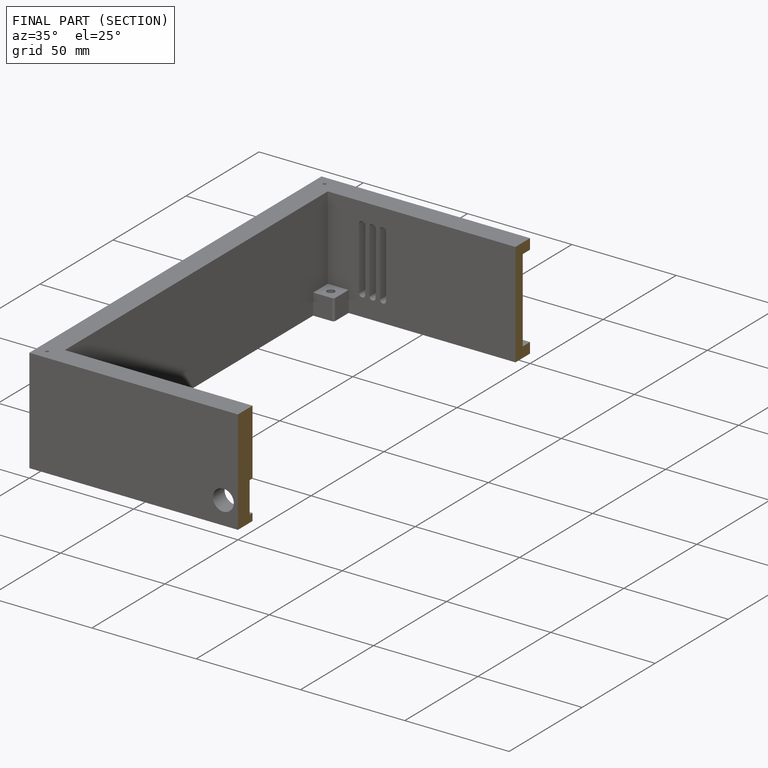
[diagram: finished part — half-section view (interior)]
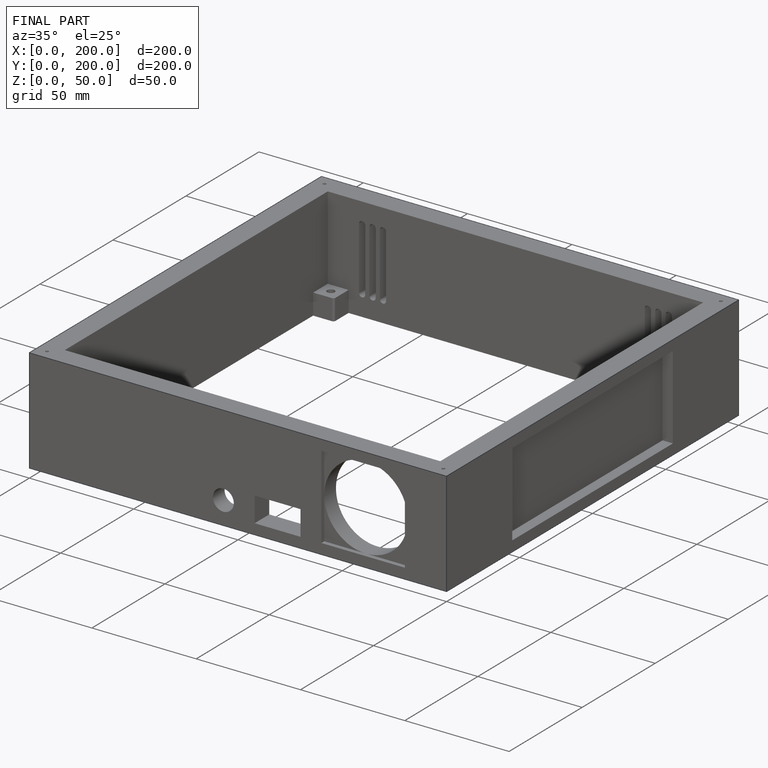
[diagram: finished part — iso view with bounding-box wireframe]
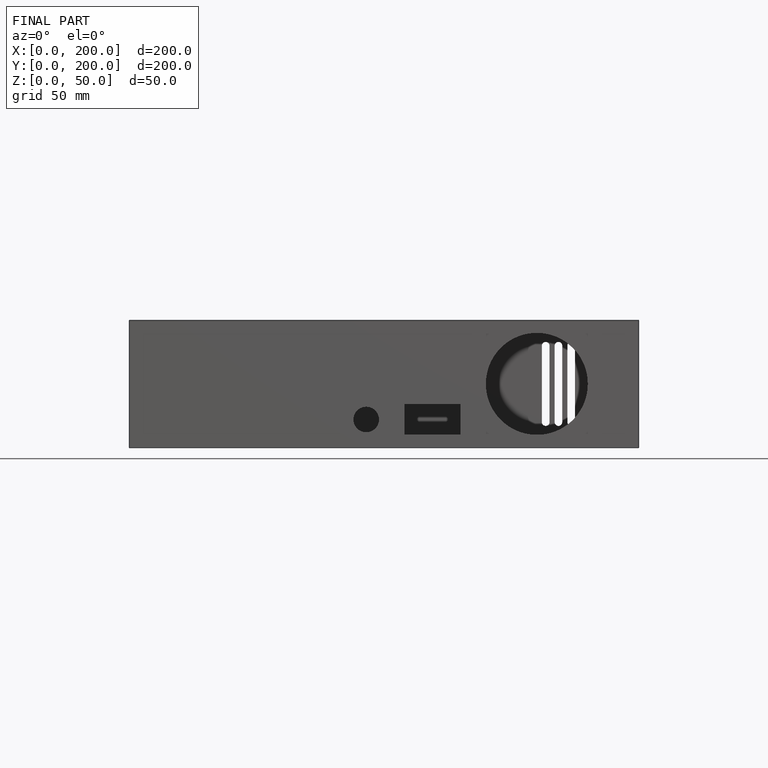
[diagram: finished part — front view with bounding-box wireframe]
